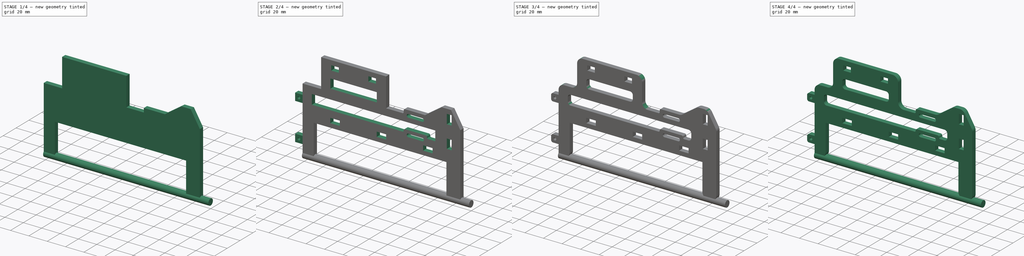
[diagram: build sequence overview — one tinted view per stage of 4, left to right]
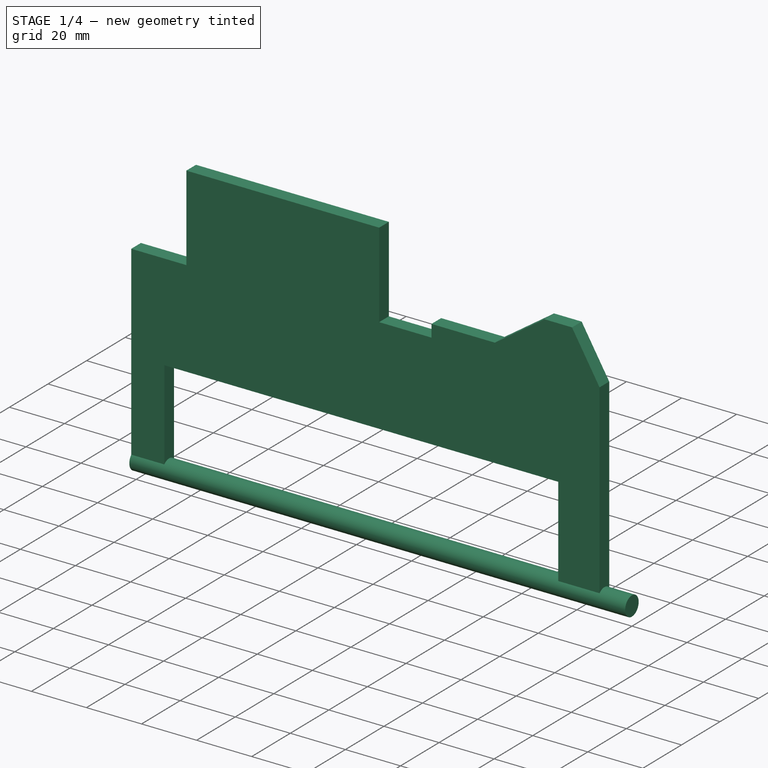
[diagram: stage 1 of 4 — iso view after this stage's code; geometry added in this stage tinted green]
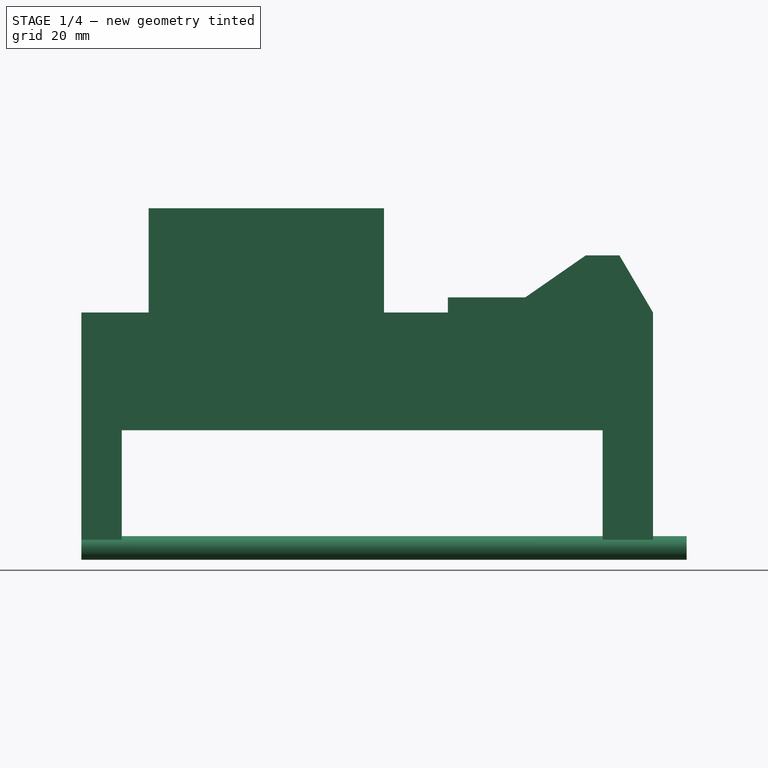
[diagram: stage 1 of 4 — front view after this stage's code; geometry added in this stage tinted green]
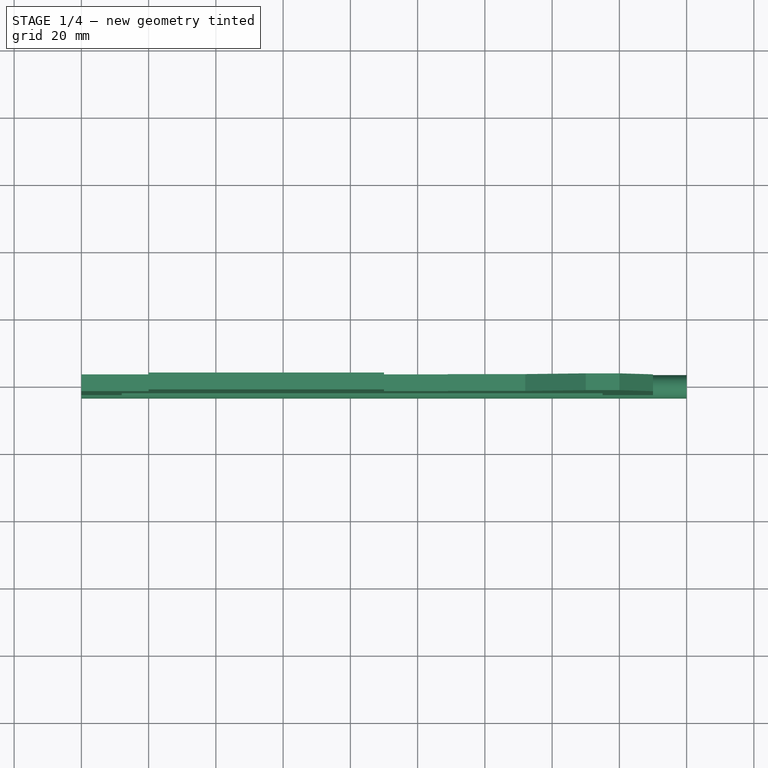
[diagram: stage 1 of 4 — top view after this stage's code; geometry added in this stage tinted green]
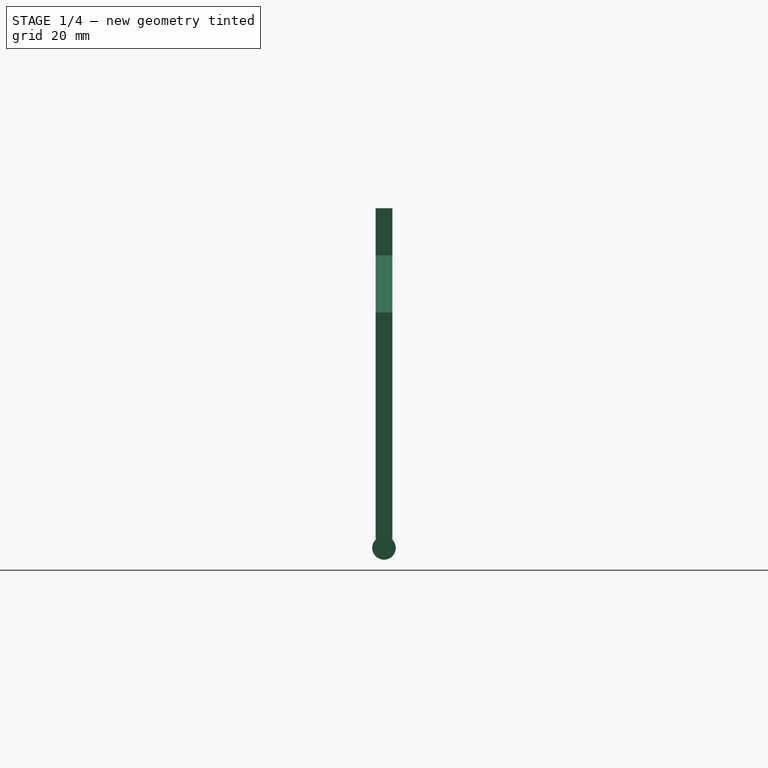
[diagram: stage 1 of 4 — right view after this stage's code; geometry added in this stage tinted green]
FCSTD DOCUMENT  (FreeCAD 0.18.4R)
Label: Frax3D ventilador
License: All rights reserved
LicenseURL: http://en.wikipedia.org/wiki/All_rights_reserved
objects: Part::Feature×18, Sketcher::SketchObject×4, PartDesign::Fillet×4, PartDesign::Body×4, App::Part×4, PartDesign::Pad×3, PartDesign::FeatureBase×2, PartDesign::Pocket×1
note: 40 computed .brp shape members not serialized (recipe doc carries the construction recipe); baked Part::Feature solids carry a one-line shape summary decoded from their .brp

FEATURE [Sketcher::SketchObject] Sketch
  MapMode = 5
  Placement = pos=(0,0,0) rot=(1,0,0;1.5708rad)
  Support = -> [XZ_Plane015]
  sketch-geometry (17):
    g0: LineSegment StartX=0 StartY=0 StartZ=0 EndX=0 EndY=70 EndZ=0
    g1: LineSegment StartX=0 StartY=70 StartZ=0 EndX=20 EndY=70 EndZ=0
    g2: LineSegment StartX=20 StartY=70 StartZ=0 EndX=20 EndY=101 EndZ=0
    g3: LineSegment StartX=20 StartY=101 StartZ=0 EndX=90 EndY=101 EndZ=0
    g4: LineSegment StartX=90 StartY=101 StartZ=0 EndX=90 EndY=70 EndZ=0
    g5: LineSegment StartX=90 StartY=70 StartZ=0 EndX=109 EndY=70 EndZ=0
    g6: LineSegment StartX=109 StartY=70 StartZ=0 EndX=109 EndY=74.5 EndZ=0
    g7: LineSegment StartX=109 StartY=74.5 StartZ=0 EndX=132 EndY=74.5 EndZ=0
    g8: LineSegment StartX=132 StartY=74.5 StartZ=0 EndX=150 EndY=87 EndZ=0
    g9: LineSegment StartX=150 StartY=87 StartZ=0 EndX=160 EndY=87 EndZ=0
    g10: LineSegment StartX=160 StartY=87 StartZ=0 EndX=170 EndY=70 EndZ=0
    g11: LineSegment StartX=170 StartY=70 StartZ=0 EndX=170 EndY=0 EndZ=0
    g12: LineSegment StartX=170 StartY=0 StartZ=0 EndX=155 EndY=0 EndZ=0
    g13: LineSegment StartX=155 StartY=0 StartZ=0 EndX=155 EndY=35 EndZ=0
    g14: LineSegment StartX=155 StartY=35 StartZ=0 EndX=12 EndY=35 EndZ=0
    g15: LineSegment StartX=12 StartY=35 StartZ=0 EndX=12 EndY=0 EndZ=0
    g16: LineSegment StartX=12 StartY=0 StartZ=0 EndX=0 EndY=0 EndZ=0
  constraints (50):
    c: Coincident(g-1,g0)
    c: PointOnObject(g0,g-2)
    c: Horizontal(g1)
    c: Coincident(g1,g2)
    c: DistanceY(g0,g1) = 70
    c: Vertical(g2)
    c: Coincident(g2,g3)
    c: Horizontal(g3)
    c: Coincident(g3,g4)
    c: Vertical(g4)
    c: Coincident(g4,g5)
    c: Horizontal(g5)
    c: Coincident(g5,g6)
    c: Vertical(g6)
    c: Coincident(g6,g7)
    c: Horizontal(g7)
    c: Coincident(g7,g8)
    c: Coincident(g8,g9)
    c: Horizontal(g9)
    c: Coincident(g9,g10)
    c: Coincident(g10,g11)
    c: PointOnObject(g11,g-1)
    c: Vertical(g11)
    c: Coincident(g11,g12)
    c: PointOnObject(g12,g-1)
    c: Coincident(g12,g13)
    c: Vertical(g13)
    c: Coincident(g13,g14)
    c: Horizontal(g14)
    c: Coincident(g14,g15)
    c: Vertical(g15)
    c: Coincident(g15,g16)
    c: Coincident(g16,g0)
    c: Horizontal(g16)
    c: Horizontal(g4,g1)
    c: DistanceY(g5,g8) = 17
    c: DistanceX(g9,g9) = 10
    c: DistanceX(g9,g10) = 10
    c: Coincident(g0,g1)
    c: DistanceX(g0,g5) = 109
    c: DistanceX(g16,g16) = 12
    c: DistanceX(g12,g12) = 15
    c: DistanceY(g15,g15) = 35
    c: DistanceX(g5,g5) = 19
    c: DistanceX(g3,g3) = 70
    c: DistanceY(g6,g6) = 4.5
    c: DistanceX(g0,g11) = 170
    c: DistanceX(g7,g7) = 23
    c: DistanceY(g11,g11) = 70
    c: DistanceY(g2,g2) = 31
FEATURE [PartDesign::Pad] Pad
  Length = 5
  Length2 = 100
  Midplane = true
  Placement = pos=(0,0,0) rot=(1,0,0;1.5708rad)
  Profile = -> Sketch
  Refine = true
  Type = 0
FEATURE [PartDesign::Body] Body  label="Lateral derecho"
  BaseFeature = -> Body007
  Group = -> [Clone001]
  Origin = -> Origin
  Placement = pos=(0,34,0) rot=(0,0,1;0rad)
  Tip = -> Clone001
FEATURE [App::Part] Part007  label="Laterales Soporte"
  Group = -> [Body007,Body008,Body]
  Origin = -> Origin014
FEATURE [Part::Feature] Part__Feature  label="V3-1"
  shape: bbox 177.5 x 102 x 5 mm, 46 faces (baked)
FEATURE [Part::Feature] Part__Feature001  label="V3-2"
  Placement = pos=(-11,32.5,-42.5) rot=(0,1,0;1.5708rad)
  shape: bbox 8 x 65 x 95 mm, 108 faces (baked)
FEATURE [Part::Feature] Part__Feature002  label="V3-4"
  Placement = pos=(-3,-2.7e-14,-10.2) rot=(0,0,1;0rad)
  shape: bbox 178 x 101 x 5 mm, 113 faces (baked)
FEATURE [Part::Feature] Part__Feature003  label="V3-005"
  Placement = pos=(0,0,-90) rot=(0,0,1;0rad)
  shape: bbox 177.5 x 102 x 5 mm, 46 faces (baked)
FEATURE [Part::Feature] Part__Feature004  label="V3-5"
  Placement = pos=(87,45,-42.5) rot=(1,0,0;1.5708rad)
  shape: bbox 180 x 5 x 74.6 mm, 112 faces (baked)
FEATURE [Part::Feature] Part__Feature005  label="V3-6"
  Placement = pos=(154.4,66,-42.5) rot=(0,-1,0;1.5708rad)
  shape: bbox 5 x 42 x 74.6 mm, 80 faces (baked)
FEATURE [Part::Feature] Part__Feature006  label="V3-7"
  Placement = pos=(-2.18526,67.5,-42.5) rot=(0,-1,0;1.5708rad)
  shape: bbox 14.45 x 45 x 62 mm, 72 faces (baked)
FEATURE [Part::Feature] Part__Feature007  label="V3-8"
  Placement = pos=(52.8147,67.5,-16.2) rot=(0,0,1;0rad)
  shape: bbox 116.5 x 45 x 5 mm, 55 faces (baked)
FEATURE [Part::Feature] Part__Feature008  label="V3-006"
  Placement = pos=(52.8147,67.5,-73.8) rot=(0,0,1;0rad)
  shape: bbox 116.5 x 45 x 5 mm, 55 faces (baked)
FEATURE [Part::Feature] Part__Feature009  label="V3-9"
  Placement = pos=(98.7147,67.4,-42.5) rot=(0,1,0;1.5708rad)
  shape: bbox 5 x 44.4 x 62.6 mm, 88 faces (baked)
FEATURE [Part::Feature] Part__Feature010  label="Husillo v3-nema 17"
  Placement = pos=(197.2,66,-42.5) rot=(0.57735,0.57735,-0.57735;4.18879rad)
  shape: bbox 189.1 x 42 x 42 mm, 150 faces (baked)
FEATURE [Part::Feature] Part__Feature011  label="Acople Flexible"
  Placement = pos=(145.4,66.8648,-41.1163) rot=(0,-1,0;1.5708rad)
  shape: bbox 25.01 x 26.02 x 26.02 mm, 109 faces, 5 solids (baked)
FEATURE [Part::Feature] Part__Feature012  label="LeadScrew-Nut"
  Placement = pos=(107.215,65.9,-42.5) rot=(0.357407,0.862856,0.357407;1.71777rad)
  shape: bbox 16.5 x 22 x 22 mm, 46 faces (baked)
FEATURE [Part::Feature] Part__Feature013  label="V3-3"
  Placement = pos=(-145.426,72.1,-42.5) rot=(0,-1,0;1.5708rad)
  shape: bbox 16.91 x 65 x 95 mm, 89 faces (baked)
FEATURE [Part::Feature] Part__Feature014  label="Bolsa respiradero"
  Placement = pos=(-84.9524,53.7595,-12.5) rot=(0,0,1;0.041105rad)
  shape: bbox 127.7 x 175 x 200 mm, 19 faces (baked)
FEATURE [Part::Feature] Part__Feature015  label="Endstop"
  Placement = pos=(122.617,66.7,-10.2) rot=(0,1,0;3.14159rad)
  shape: bbox 19.66 x 39.5 x 8 mm, 120 faces, 5 solids (baked)
FEATURE [Part::Feature] Part__Feature016  label="V3-4 - copia"
  Placement = pos=(-3,-1.4e-14,-79.8) rot=(0,0,1;0rad)
  shape: bbox 178 x 101 x 5 mm, 91 faces (baked)
FEATURE [Part::Feature] Part__Feature017  label="V3-10"
  Placement = pos=(51.9,90.8,-42.5) rot=(-1,0,0;1.5708rad)
  shape: bbox 70 x 5 x 74.6 mm, 82 faces (baked)
FEATURE [App::Part] __V3  label="0_V3"
  Group = -> [Part__Feature,Part__Feature001,Part__Feature002,Part__Feature003,Part__Feature004,Part__Feature005,Part__Feature006,Part__Feature007,Part__Feature008,Part__Feature009,Part__Feature010,Part__Feature011,Part__Feature012,Part__Feature013,Part__Feature014,Part__Feature015,Part__Feature016,Part__Feature017]
  Origin = -> Origin017
  Placement = pos=(8,-42,-0.5) rot=(1,0,0;1.5708rad)
FEATURE [Sketcher::SketchObject] Sketch024
  MapMode = 5
  Placement = pos=(0,0,0) rot=(0.57735,0.57735,0.57735;2.0944rad)
  Support = -> [YZ_Plane022]
  sketch-geometry (1):
    g0: Circle CenterX=0 CenterY=0 CenterZ=0 NormalX=0 NormalY=0 NormalZ=1 AngleXU=0 Radius=3.5
  constraints (2):
    c: Coincident(g0,g-1)
    c: Radius(g0) = 3.5
FEATURE [PartDesign::Pad] Pad011
  Length = 180
  Length2 = 100
  Placement = pos=(0,0,0) rot=(0.57735,0.57735,0.57735;2.0944rad)
  Profile = -> Sketch024
  Refine = true
  Type = 0
FEATURE [PartDesign::Body] Body011
  Group = -> [Sketch024,Pad011]
  Origin = -> Origin022
  Tip = -> Pad011
FEATURE [App::Part] Part009
  Group = -> [Body011]
  Origin = -> Origin021
  Placement = pos=(0,0.5,66) rot=(0,0,1;0rad)
FEATURE [App::Part] Part
  Group = -> [Part009]
  Origin = -> Origin018
  Placement = pos=(-4,0,0) rot=(0,0,1;0rad)
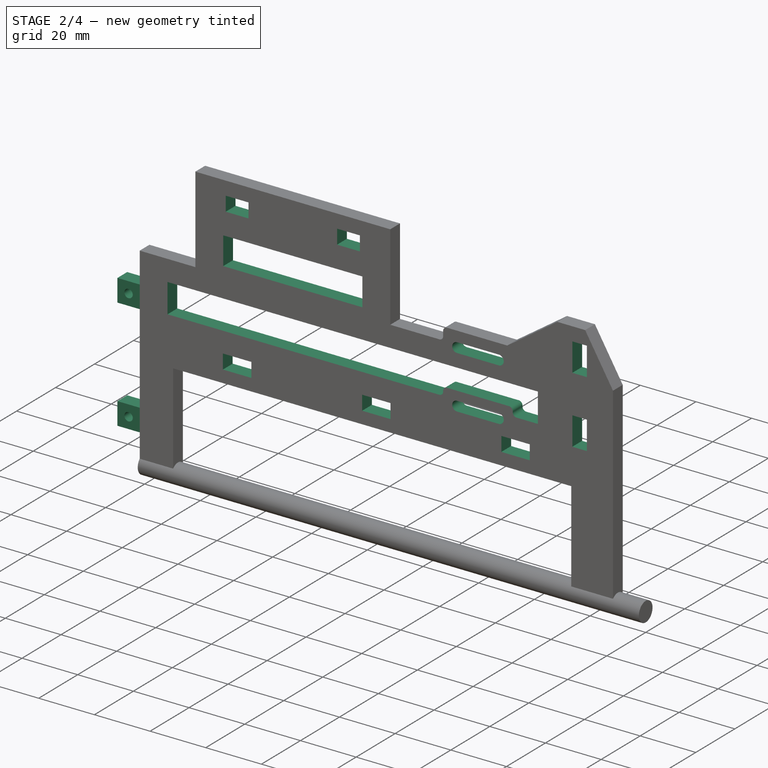
[diagram: stage 2 of 4 — iso view after this stage's code; geometry added in this stage tinted green]
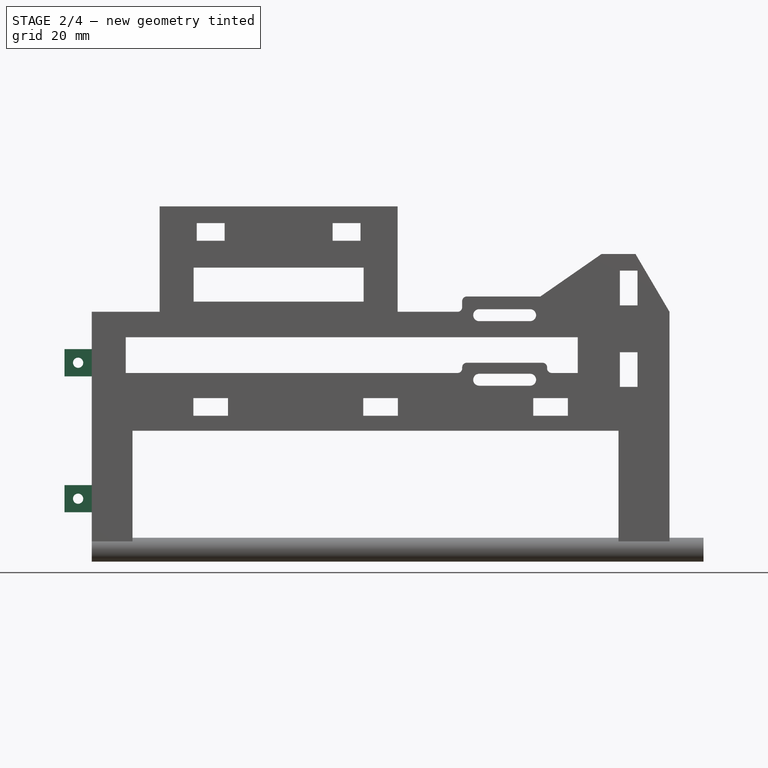
[diagram: stage 2 of 4 — front view after this stage's code; geometry added in this stage tinted green]
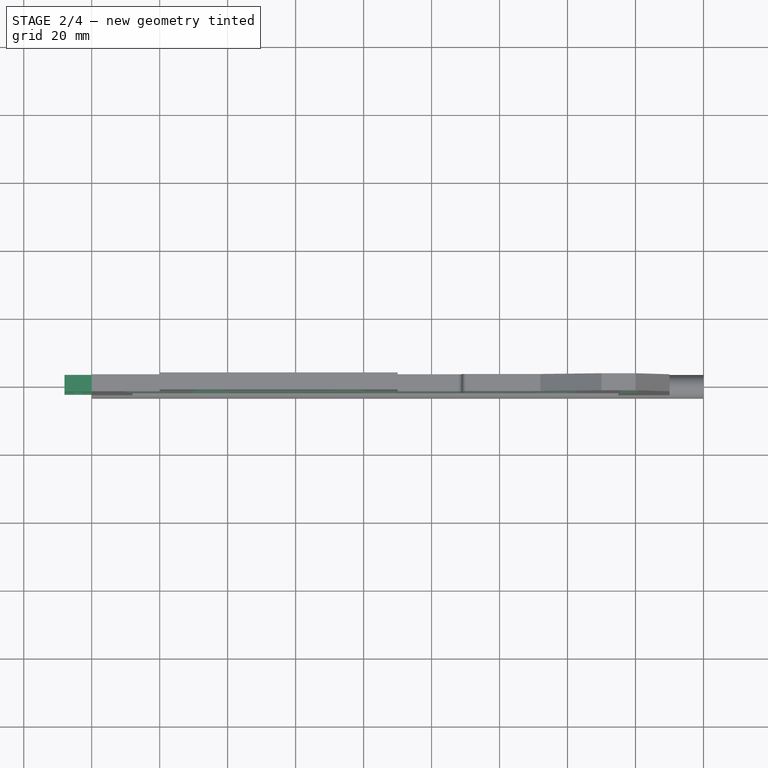
[diagram: stage 2 of 4 — top view after this stage's code; geometry added in this stage tinted green]
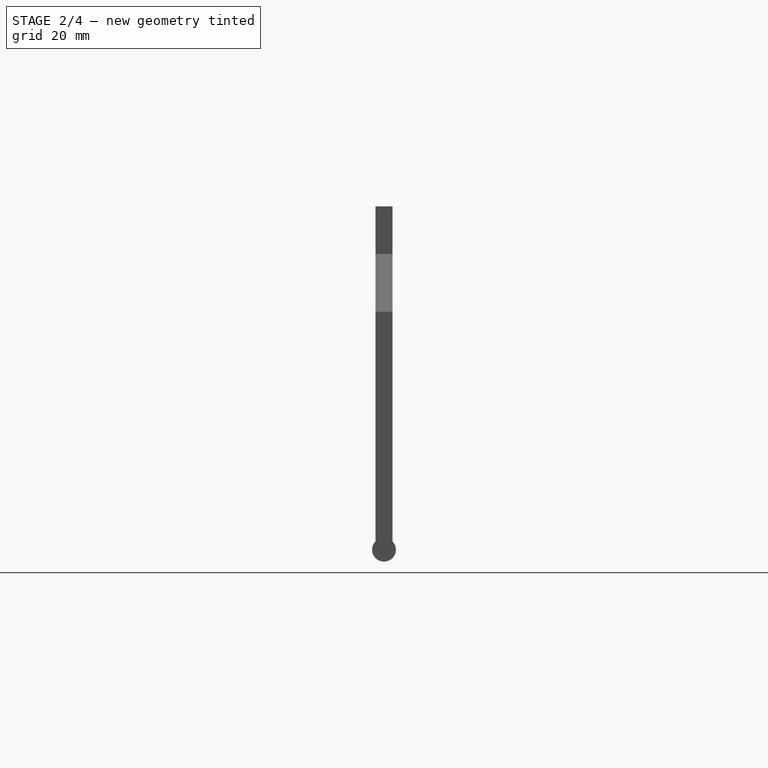
[diagram: stage 2 of 4 — right view after this stage's code; geometry added in this stage tinted green]
FEATURE [Sketcher::SketchObject] Sketch001
  ExternalGeometry = -> [Pad]
  MapMode = 5
  Placement = pos=(0,-2.5,5e-16) rot=(1,0,0;1.5708rad)
  Support = -> [Pad]
  sketch-geometry (62):
    g0: LineSegment StartX=29.9 StartY=44.6 StartZ=0 EndX=40.1 EndY=44.6 EndZ=0
    g1: LineSegment StartX=40.1 StartY=44.6 StartZ=0 EndX=40.1 EndY=39.4 EndZ=0
    g2: LineSegment StartX=40.1 StartY=39.4 StartZ=0 EndX=29.9 EndY=39.4 EndZ=0
    g3: LineSegment StartX=29.9 StartY=39.4 StartZ=0 EndX=29.9 EndY=44.6 EndZ=0
    g4: LineSegment StartX=79.9 StartY=44.6 StartZ=0 EndX=90.1 EndY=44.6 EndZ=0
    g5: LineSegment StartX=90.1 StartY=44.6 StartZ=0 EndX=90.1 EndY=39.4 EndZ=0
    g6: LineSegment StartX=90.1 StartY=39.4 StartZ=0 EndX=79.9 EndY=39.4 EndZ=0
    g7: LineSegment StartX=79.9 StartY=39.4 StartZ=0 EndX=79.9 EndY=44.6 EndZ=0
    g8: LineSegment StartX=129.9 StartY=44.6 StartZ=0 EndX=140.1 EndY=44.6 EndZ=0
    g9: LineSegment StartX=140.1 StartY=44.6 StartZ=0 EndX=140.1 EndY=39.4 EndZ=0
    g10: LineSegment StartX=140.1 StartY=39.4 StartZ=0 EndX=129.9 EndY=39.4 EndZ=0
    g11: LineSegment StartX=129.9 StartY=39.4 StartZ=0 EndX=129.9 EndY=44.6 EndZ=0
    g12: LineSegment StartX=30.9 StartY=96.1 StartZ=0 EndX=39.1 EndY=96.1 EndZ=0
    g13: LineSegment StartX=39.1 StartY=96.1 StartZ=0 EndX=39.1 EndY=90.9 EndZ=0
    g14: LineSegment StartX=39.1 StartY=90.9 StartZ=0 EndX=30.9 EndY=90.9 EndZ=0
    g15: LineSegment StartX=30.9 StartY=90.9 StartZ=0 EndX=30.9 EndY=96.1 EndZ=0
    g16: LineSegment StartX=70.9 StartY=96.1 StartZ=0 EndX=79.1 EndY=96.1 EndZ=0
    g17: LineSegment StartX=79.1 StartY=96.1 StartZ=0 EndX=79.1 EndY=90.9 EndZ=0
    g18: LineSegment StartX=79.1 StartY=90.9 StartZ=0 EndX=70.9 EndY=90.9 EndZ=0
    g19: LineSegment StartX=70.9 StartY=90.9 StartZ=0 EndX=70.9 EndY=96.1 EndZ=0
    g20: LineSegment StartX=30 StartY=83 StartZ=0 EndX=80 EndY=83 EndZ=0
    g21: LineSegment StartX=80 StartY=83 StartZ=0 EndX=80 EndY=73 EndZ=0
    g22: LineSegment StartX=80 StartY=73 StartZ=0 EndX=30 EndY=73 EndZ=0
    g23: LineSegment StartX=30 StartY=73 StartZ=0 EndX=30 EndY=83 EndZ=0
    g24: LineSegment StartX=155.4 StartY=82.1 StartZ=0 EndX=160.6 EndY=82.1 EndZ=0
    g25: LineSegment StartX=160.6 StartY=82.1 StartZ=0 EndX=160.6 EndY=71.9 EndZ=0
    g26: LineSegment StartX=160.6 StartY=71.9 StartZ=0 EndX=155.4 EndY=71.9 EndZ=0
    g27: LineSegment StartX=155.4 StartY=71.9 StartZ=0 EndX=155.4 EndY=82.1 EndZ=0
    g28: LineSegment StartX=155.4 StartY=58.1 StartZ=0 EndX=160.6 EndY=58.1 EndZ=0
    g29: LineSegment StartX=160.6 StartY=58.1 StartZ=0 EndX=160.6 EndY=47.9 EndZ=0
    g30: LineSegment StartX=160.6 StartY=47.9 StartZ=0 EndX=155.4 EndY=47.9 EndZ=0
    g31: LineSegment StartX=155.4 StartY=47.9 StartZ=0 EndX=155.4 EndY=58.1 EndZ=0
    g32: LineSegment [constr] StartX=29.9 StartY=44.6 StartZ=0 EndX=35 EndY=42 EndZ=0
    g33: LineSegment [constr] StartX=40.1 StartY=39.4 StartZ=0 EndX=35 EndY=42 EndZ=0
    g34: LineSegment [constr] StartX=79.9 StartY=44.6 StartZ=0 EndX=85 EndY=42 EndZ=0
    g35: LineSegment [constr] StartX=90.1 StartY=39.4 StartZ=0 EndX=85 EndY=42 EndZ=0
    g36: LineSegment [constr] StartX=140.1 StartY=39.4 StartZ=0 EndX=135 EndY=42 EndZ=0
    g37: LineSegment [constr] StartX=129.9 StartY=44.6 StartZ=0 EndX=135 EndY=42 EndZ=0
    g38: LineSegment StartX=10 StartY=62.5 StartZ=0 EndX=143 EndY=62.5 EndZ=0
    g39: LineSegment StartX=143 StartY=62.5 StartZ=0 EndX=143 EndY=52 EndZ=0
    g40: LineSegment StartX=143 StartY=52 StartZ=0 EndX=134 EndY=52 EndZ=0
    g41: LineSegment StartX=10 StartY=52 StartZ=0 EndX=10 EndY=62.5 EndZ=0
    g42: LineSegment StartX=109 StartY=52 StartZ=0 EndX=109 EndY=55 EndZ=0
    g43: LineSegment StartX=109 StartY=55 StartZ=0 EndX=134 EndY=55 EndZ=0
    g44: LineSegment StartX=134 StartY=55 StartZ=0 EndX=134 EndY=52 EndZ=0
    g45: LineSegment StartX=109 StartY=52 StartZ=0 EndX=10 EndY=52 EndZ=0
    g46: ArcOfCircle CenterX=114 CenterY=50 CenterZ=0 NormalX=0 NormalY=0 NormalZ=1 AngleXU=0 Radius=1.75 StartAngle=1.5708 EndAngle=4.71239
    g47: ArcOfCircle CenterX=129 CenterY=50 CenterZ=0 NormalX=0 NormalY=0 NormalZ=1 AngleXU=0 Radius=1.75 StartAngle=4.71239 EndAngle=7.85398
    g48: LineSegment StartX=114 StartY=48.25 StartZ=0 EndX=129 EndY=48.25 EndZ=0
    g49: LineSegment StartX=114 StartY=51.75 StartZ=0 EndX=129 EndY=51.75 EndZ=0
    g50: ArcOfCircle CenterX=114 CenterY=69 CenterZ=0 NormalX=0 NormalY=0 NormalZ=1 AngleXU=0 Radius=1.75 StartAngle=1.5708 EndAngle=4.71239
    g51: ArcOfCircle CenterX=129 CenterY=69 CenterZ=0 NormalX=0 NormalY=0 NormalZ=1 AngleXU=0 Radius=1.75 StartAngle=4.71239 EndAngle=7.85398
    g52: LineSegment StartX=114 StartY=67.25 StartZ=0 EndX=129 EndY=67.25 EndZ=0
    g53: LineSegment StartX=114 StartY=70.75 StartZ=0 EndX=129 EndY=70.75 EndZ=0
    g54: LineSegment [constr] StartX=155.4 StartY=82.1 StartZ=0 EndX=158 EndY=77 EndZ=0
    g55: LineSegment [constr] StartX=158 StartY=77 StartZ=0 EndX=160.6 EndY=71.9 EndZ=0
    g56: LineSegment [constr] StartX=155.4 StartY=58.1 StartZ=0 EndX=158 EndY=53 EndZ=0
    g57: LineSegment [constr] StartX=158 StartY=53 StartZ=0 EndX=160.6 EndY=47.9 EndZ=0
    g58: LineSegment [constr] StartX=30.9 StartY=96.1 StartZ=0 EndX=35 EndY=93.5 EndZ=0
    g59: LineSegment [constr] StartX=35 StartY=93.5 StartZ=0 EndX=39.1 EndY=90.9 EndZ=0
    g60: LineSegment [constr] StartX=70.9 StartY=96.1 StartZ=0 EndX=75 EndY=93.5 EndZ=0
    g61: LineSegment [constr] StartX=75 StartY=93.5 StartZ=0 EndX=79.1 EndY=90.9 EndZ=0
  constraints (176):
    c: Coincident(g0,g1)
    c: Coincident(g1,g2)
    c: Coincident(g2,g3)
    c: Coincident(g3,g0)
    c: Horizontal(g0)
    c: Horizontal(g2)
    c: Vertical(g1)
    c: Vertical(g3)
    c: Coincident(g4,g5)
    c: Coincident(g5,g6)
    c: Coincident(g6,g7)
    c: Coincident(g7,g4)
    c: Horizontal(g4)
    c: Horizontal(g6)
    c: Vertical(g5)
    c: Vertical(g7)
    c: Coincident(g8,g9)
    c: Coincident(g9,g10)
    c: Coincident(g10,g11)
    c: Coincident(g11,g8)
    c: Horizontal(g8)
    c: Horizontal(g10)
    c: Vertical(g9)
    c: Vertical(g11)
    c: Coincident(g12,g13)
    c: Coincident(g13,g14)
    c: Coincident(g14,g15)
    c: Coincident(g15,g12)
    c: Horizontal(g12)
    c: Horizontal(g14)
    c: Vertical(g13)
    c: Vertical(g15)
    c: Coincident(g16,g17)
    c: Coincident(g17,g18)
    c: Coincident(g18,g19)
    c: Coincident(g19,g16)
    c: Horizontal(g16)
    c: Horizontal(g18)
    c: Vertical(g17)
    c: Vertical(g19)
    c: Coincident(g20,g21)
    c: Coincident(g21,g22)
    c: Coincident(g22,g23)
    c: Coincident(g23,g20)
    c: Horizontal(g20)
    c: Horizontal(g22)
    c: Vertical(g21)
    c: Vertical(g23)
    c: Coincident(g24,g25)
    c: Coincident(g25,g26)
    c: Coincident(g26,g27)
    c: Coincident(g27,g24)
    c: Horizontal(g24)
    c: Horizontal(g26)
    c: Vertical(g25)
    c: Vertical(g27)
    c: Coincident(g28,g29)
    c: Coincident(g29,g30)
    c: Coincident(g30,g31)
    c: Coincident(g31,g28)
    c: Horizontal(g28)
    c: Horizontal(g30)
    c: Vertical(g29)
    c: Vertical(g31)
    c: DistanceX(g2,g2) = 10.2
    c: DistanceY(g3,g3) = 5.2
    c: Coincident(g32,g0)
    c: Coincident(g33,g32)
    c: Coincident(g1,g33)
    c: Parallel(g33,g32)
    c: Equal(g33,g32)
    c: DistanceX(g-1,g32) = 35
    c: DistanceY(g-1,g32) = 42
    c: Equal(g6,g2)
    c: Equal(g7,g3)
    c: Equal(g7,g11)
    c: Equal(g6,g10)
    c: Horizontal(g1,g6)
    c: Horizontal(g10,g5)
    c: DistanceX(g12,g12) = 8.2
    c: Equal(g15,g3)
    c: Equal(g19,g15)
    c: Equal(g16,g12)
    c: Horizontal(g16,g12)
    c: Coincident(g34,g4)
    c: Coincident(g35,g5)
    c: Coincident(g35,g34)
    c: Coincident(g37,g8)
    c: Coincident(g37,g36)
    c: Coincident(g36,g9)
    c: Equal(g36,g37)
    c: Equal(g36,g37)
    c: Parallel(g36,g37)
    c: Parallel(g34,g35)
    c: Equal(g34,g35)
    c: DistanceX(g32,g34) = 50
    c: DistanceX(g34,g36) = 50
    c: Equal(g16,g12)
    c: Coincident(g38,g39)
    c: Coincident(g39,g40)
    c: Coincident(g45,g41)
    c: Coincident(g41,g38)
    c: Horizontal(g38)
    c: Horizontal(g40)
    c: Vertical(g39)
    c: Vertical(g41)
    c: DistanceX(g38,g38) = 133
    c: DistanceY(g-1,g45) = 52
    c: DistanceY(g41,g41) = 10.5
    c: Coincident(g42,g43)
    c: Horizontal(g43)
    c: Coincident(g43,g44)
    c: Vertical(g44)
    c: Coincident(g40,g44)
    c: Coincident(g45,g42)
    c: Tangent(g40,g45)
    c: Vertical(g42)
    c: DistanceX(g-1,g41) = 10
    c: DistanceX(g41,g42) = 99
    c: DistanceX(g43,g43) = 25
    c: DistanceY(g42,g42) = 3
    c: Tangent(g46,g49) = 1.5708
    c: Tangent(g46,g48) = -1.5708
    c: Tangent(g48,g47) = -1.5708
    c: Tangent(g49,g47) = 1.5708
    c: Horizontal(g48)
    c: Equal(g46,g47)
    c: DistanceX(g-1,g47) = 129
    c: Radius(g46) = 1.75
    c: Tangent(g50,g53) = 1.5708
    c: Tangent(g50,g52) = -1.5708
    c: Tangent(g52,g51) = -1.5708
    c: Tangent(g53,g51) = 1.5708
    c: Horizontal(g52)
    c: Equal(g50,g51)
    c: Vertical(g50,g46)
    c: Equal(g53,g49)
    c: Equal(g51,g47)
    c: DistanceY(g47,g51) = 19
    c: DistanceY(g-3,g47) = 50
    c: Equal(g24,g17)
    c: Equal(g28,g26)
    c: Coincident(g54,g24)
    c: Coincident(g55,g25)
    c: Parallel(g55,g54)
    c: Equal(g55,g54)
    c: DistanceX(g54,g-3) = 12
    c: Vertical(g28,g26)
    c: Equal(g31,g27)
    c: Equal(g27,g0)
    c: Coincident(g28,g56)
    c: Coincident(g56,g57)
    c: Coincident(g57,g29)
    c: Parallel(g57,g56)
    c: Equal(g57,g56)
    c: DistanceY(g56,g54) = 24
    c: DistanceY(g-3,g56) = 53
    c: DistanceX(g-6,g22) = 10
    c: DistanceX(g20,g20) = 50
    c: DistanceY(g21,g21) = 10
    c: DistanceY(g20,g-5) = 18
    c: Coincident(g12,g58)
    c: Coincident(g58,g59)
    c: Coincident(g59,g13)
    c: Coincident(g60,g61)
    c: Coincident(g61,g17)
    c: Parallel(g59,g58)
    c: Equal(g58,g59)
    c: Parallel(g61,g60)
    c: Equal(g60,g61)
    c: DistanceX(g-6,g58) = 15
    c: Coincident(g60,g16)
    c: DistanceX(g60,g-5) = 15
    c: DistanceY(g58,g-6) = 7.5
    c: DistanceX(g53,g53) = 15
    c: Coincident(g54,g55)
FEATURE [PartDesign::Pocket] Pocket
  BaseFeature = -> Pad
  Length = 6
  Length2 = 100
  Placement = pos=(0,0,0) rot=(1,0,0;1.5708rad)
  Profile = -> Sketch001
  Refine = true
  Type = 0
FEATURE [Sketcher::SketchObject] Sketch002
  MapMode = 5
  Placement = pos=(0,-2.5,5e-16) rot=(1,0,0;1.5708rad)
  Support = -> [Pocket]
  sketch-geometry (14):
    g0: LineSegment StartX=0 StartY=59 StartZ=0 EndX=-8 EndY=59 EndZ=0
    g1: LineSegment StartX=-8 StartY=59 StartZ=0 EndX=-8 EndY=51 EndZ=0
    g2: LineSegment StartX=-8 StartY=51 StartZ=0 EndX=0 EndY=51 EndZ=0
    g3: LineSegment StartX=0 StartY=51 StartZ=0 EndX=0 EndY=59 EndZ=0
    g4: LineSegment StartX=0 StartY=19 StartZ=0 EndX=-8 EndY=19 EndZ=0
    g5: LineSegment StartX=-8 StartY=19 StartZ=0 EndX=-8 EndY=11 EndZ=0
    g6: LineSegment StartX=-8 StartY=11 StartZ=0 EndX=0 EndY=11 EndZ=0
    g7: LineSegment StartX=0 StartY=11 StartZ=0 EndX=0 EndY=19 EndZ=0
    g8: LineSegment [constr] StartX=-8 StartY=59 StartZ=0 EndX=-4 EndY=55 EndZ=0
    g9: LineSegment [constr] StartX=-4 StartY=55 StartZ=0 EndX=0 EndY=51 EndZ=0
    g10: LineSegment [constr] StartX=-8 StartY=19 StartZ=0 EndX=-4 EndY=15 EndZ=0
    g11: LineSegment [constr] StartX=-4 StartY=15 StartZ=0 EndX=0 EndY=11 EndZ=0
    g12: Circle CenterX=-4 CenterY=55 CenterZ=0 NormalX=0 NormalY=0 NormalZ=1 AngleXU=0 Radius=1.5
    g13: Circle CenterX=-4 CenterY=15 CenterZ=0 NormalX=0 NormalY=0 NormalZ=1 AngleXU=0 Radius=1.5
  constraints (38):
    c: Coincident(g0,g1)
    c: Coincident(g1,g2)
    c: Coincident(g2,g3)
    c: Coincident(g3,g0)
    c: Horizontal(g0)
    c: Horizontal(g2)
    c: Vertical(g1)
    c: Vertical(g3)
    c: PointOnObject(g0,g-2)
    c: Coincident(g4,g5)
    c: Coincident(g5,g6)
    c: Coincident(g6,g7)
    c: Coincident(g7,g4)
    c: Horizontal(g4)
    c: Horizontal(g6)
    c: Vertical(g5)
    c: Vertical(g7)
    c: PointOnObject(g4,g-2)
    c: Coincident(g0,g8)
    c: Coincident(g8,g9)
    c: Coincident(g9,g2)
    c: Coincident(g10,g11)
    c: Coincident(g11,g6)
    c: Parallel(g8,g9)
    c: Parallel(g10,g11)
    c: Equal(g9,g8)
    c: Equal(g11,g10)
    c: Coincident(g10,g4)
    c: Equal(g2,g4)
    c: DistanceY(g-1,g10) = 15
    c: DistanceY(g10,g8) = 40
    c: DistanceY(g7,g7) = 8
    c: Equal(g3,g7)
    c: DistanceX(g0,g0) = 8
    c: Coincident(g12,g8)
    c: Coincident(g13,g10)
    c: Equal(g13,g12)
    c: Radius(g12) = 1.5
FEATURE [PartDesign::Pad] Pad001
  BaseFeature = -> Pocket
  Length = 5
  Length2 = 100
  Placement = pos=(0,0,0) rot=(1,0,0;1.5708rad)
  Profile = -> Sketch002
  Refine = true
  Reversed = true
  Type = 0
FEATURE [PartDesign::Fillet] Fillet
  Base = -> Pad001 [Edge136,Edge138,Edge27,Edge24,Edge140,Edge134]
  BaseFeature = -> Pad001
  Placement = pos=(0,0,0) rot=(1,0,0;1.5708rad)
  Radius = 1.35
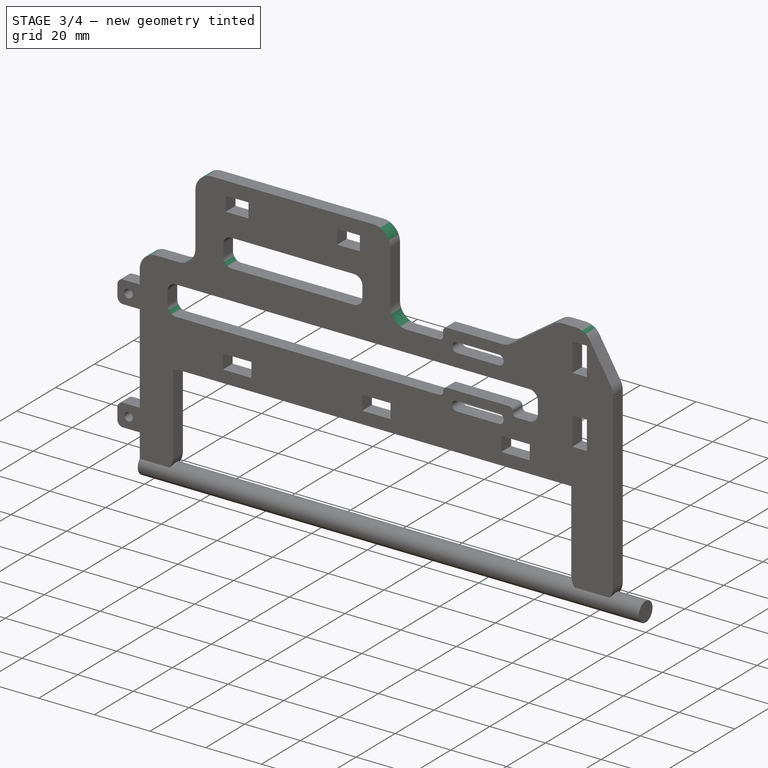
[diagram: stage 3 of 4 — iso view after this stage's code; geometry added in this stage tinted green]
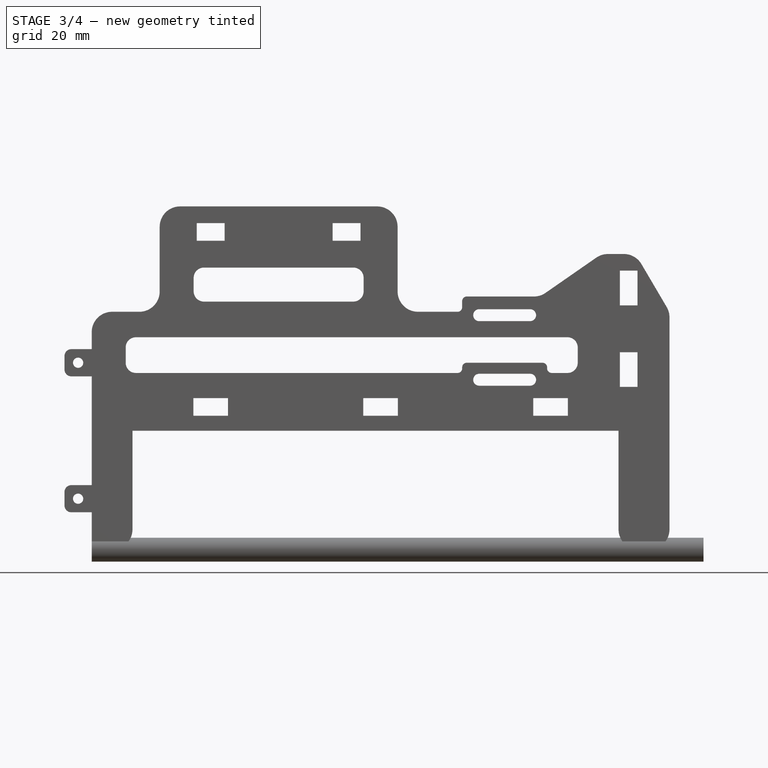
[diagram: stage 3 of 4 — front view after this stage's code; geometry added in this stage tinted green]
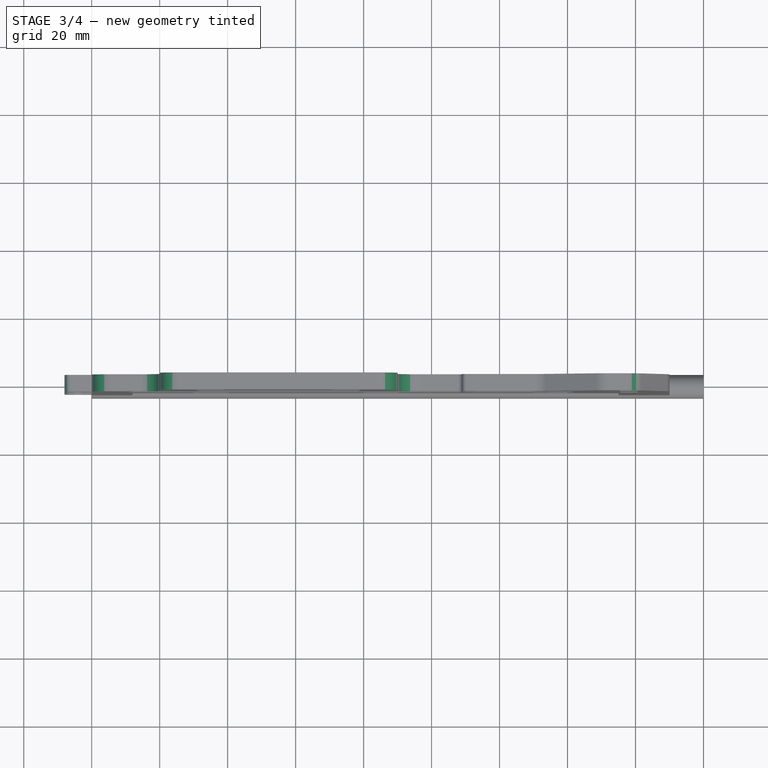
[diagram: stage 3 of 4 — top view after this stage's code; geometry added in this stage tinted green]
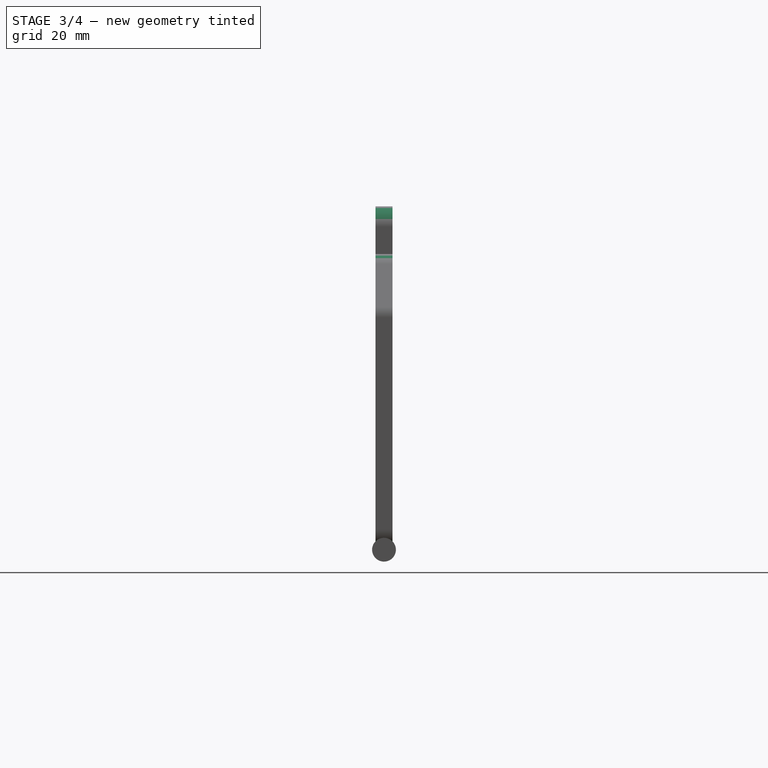
[diagram: stage 3 of 4 — right view after this stage's code; geometry added in this stage tinted green]
FEATURE [PartDesign::Fillet] Fillet001
  Base = -> Fillet [Edge235,Edge233,Edge239,Edge237,Edge192,Edge191,Edge190,Edge193]
  BaseFeature = -> Fillet
  Placement = pos=(0,0,0) rot=(1,0,0;1.5708rad)
  Radius = 3
FEATURE [PartDesign::Fillet] Fillet002
  Base = -> Fillet001 [Edge115,Edge119,Edge111,Edge107,Edge121,Edge125,Edge129,Edge133,Edge137,Edge141,Edge153,Edge123]
  BaseFeature = -> Fillet001
  Placement = pos=(0,0,0) rot=(1,0,0;1.5708rad)
  Radius = 6
FEATURE [PartDesign::Fillet] Fillet003
  Base = -> Fillet002 [Edge145,Edge149,Edge161,Edge165]
  BaseFeature = -> Fillet002
  Placement = pos=(0,0,0) rot=(1,0,0;1.5708rad)
  Radius = 2
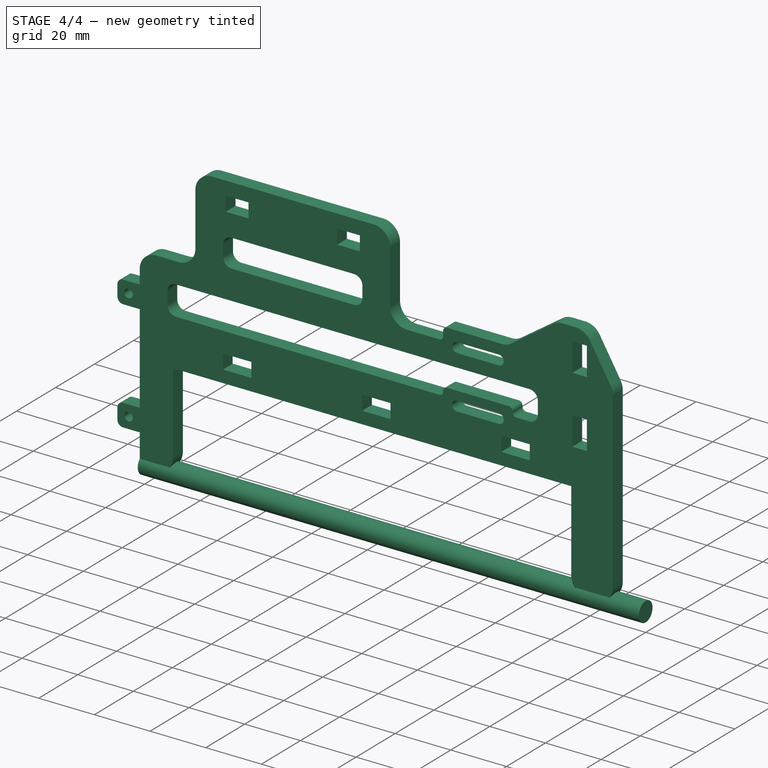
[diagram: stage 4 of 4 — iso view after this stage's code; geometry added in this stage tinted green]
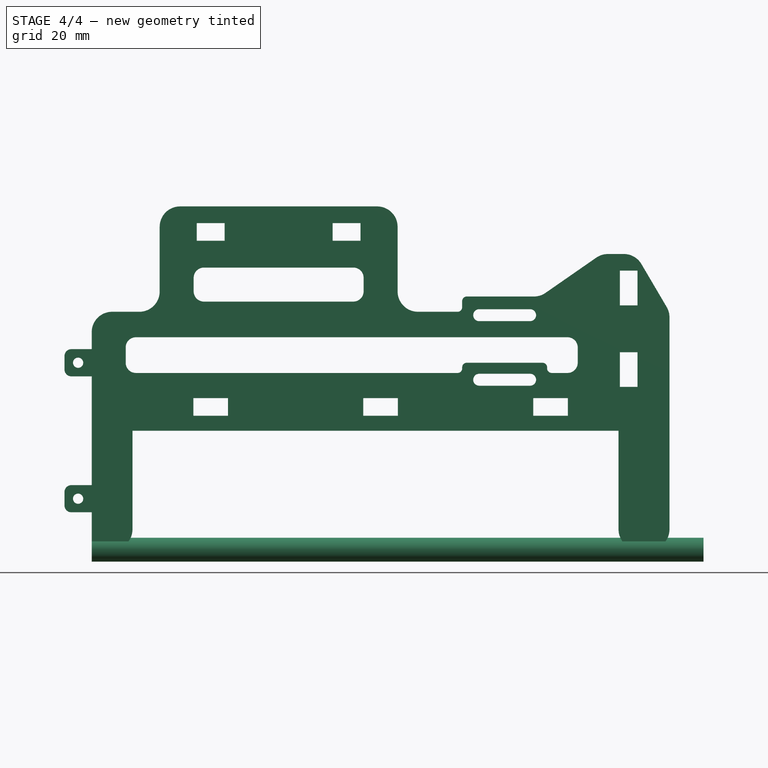
[diagram: stage 4 of 4 — front view after this stage's code; geometry added in this stage tinted green]
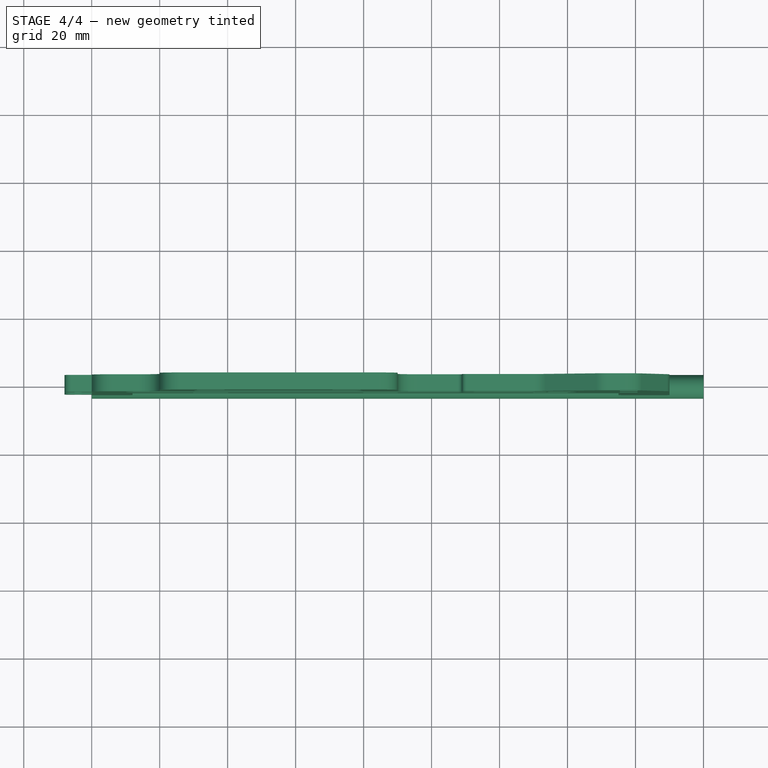
[diagram: stage 4 of 4 — top view after this stage's code; geometry added in this stage tinted green]
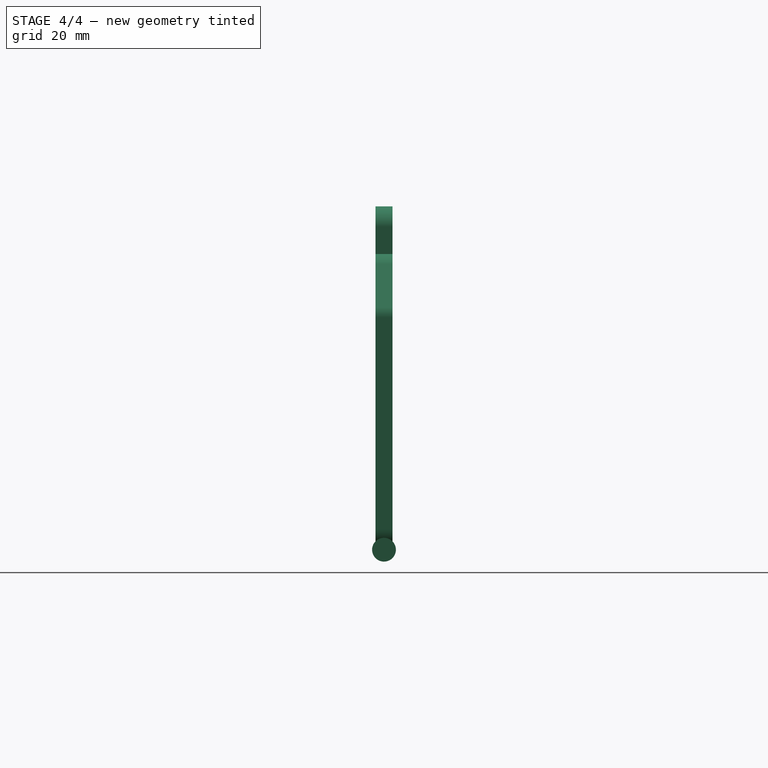
[diagram: stage 4 of 4 — right view after this stage's code; geometry added in this stage tinted green]
FEATURE [PartDesign::Body] Body007  label="Body"
  Group = -> [Sketch,Pad,Sketch001,Pocket,Sketch002,Pad001,Fillet,Fillet001,Fillet002,Fillet003]
  Origin = -> Origin015
  Tip = -> Fillet003
FEATURE [PartDesign::FeatureBase] Clone
  BaseFeature = -> Body007
FEATURE [PartDesign::Body] Body008  label="lateral izquierdo"
  BaseFeature = -> Body007
  Group = -> [Clone]
  Origin = -> Origin016
  Placement = pos=(0,-34,0) rot=(0,0,1;0rad)
  Tip = -> Clone
FEATURE [PartDesign::FeatureBase] Clone001
  BaseFeature = -> Body007
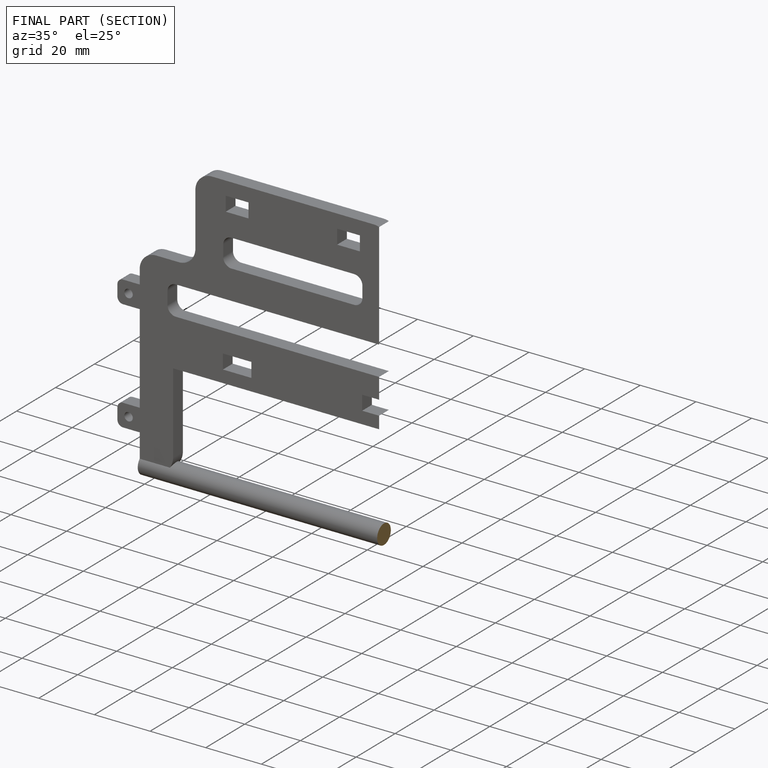
[diagram: finished part — half-section view (interior)]
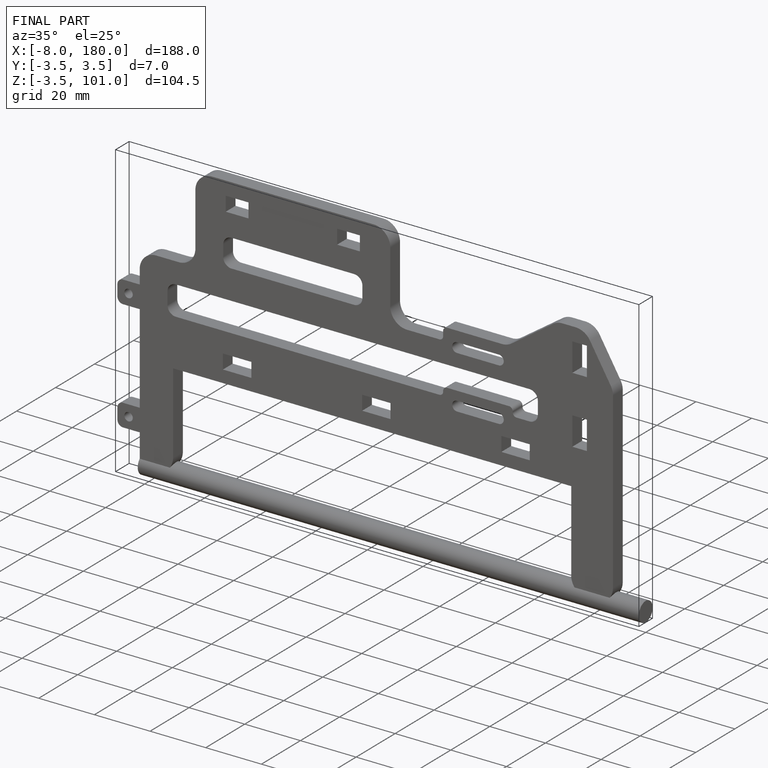
[diagram: finished part — iso view with bounding-box wireframe]
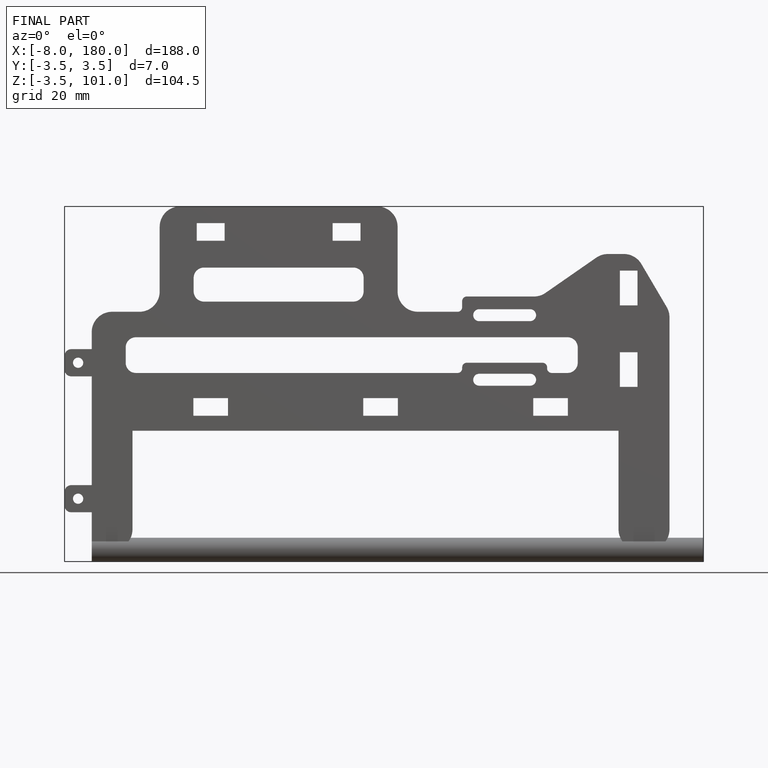
[diagram: finished part — front view with bounding-box wireframe]
